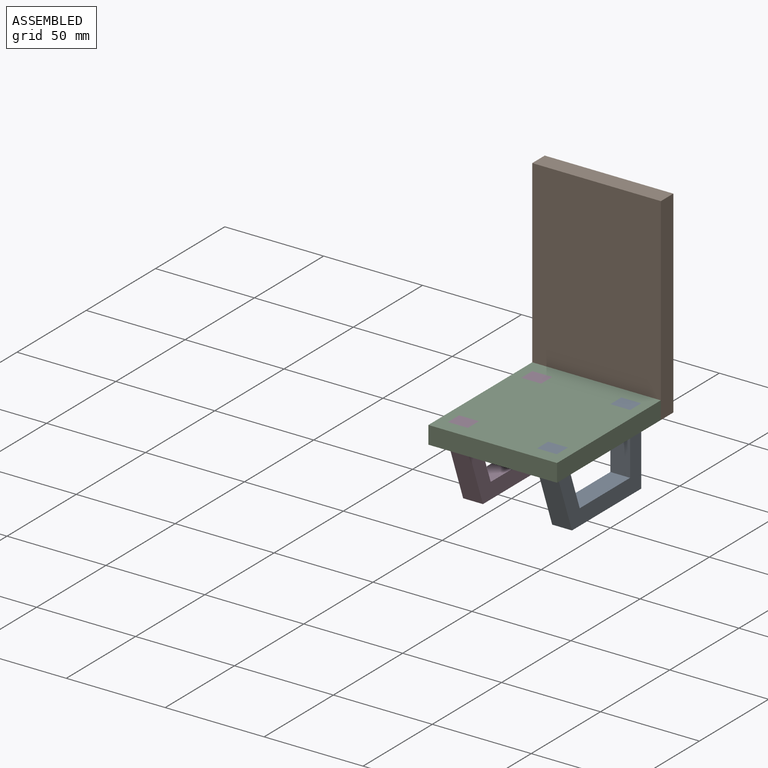
[diagram: assembled view]
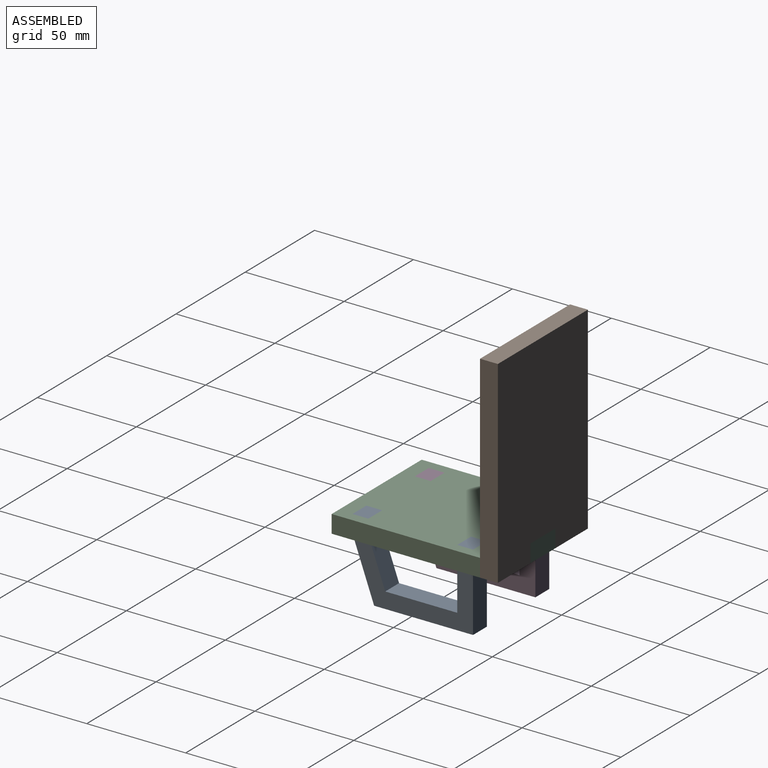
[diagram: assembled view, second angle]
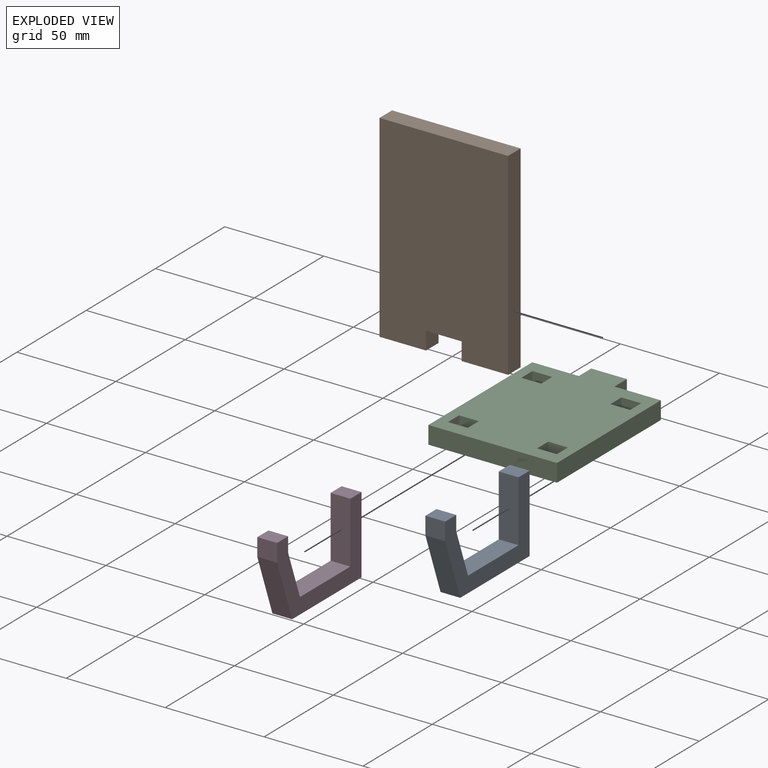
[diagram: exploded view]
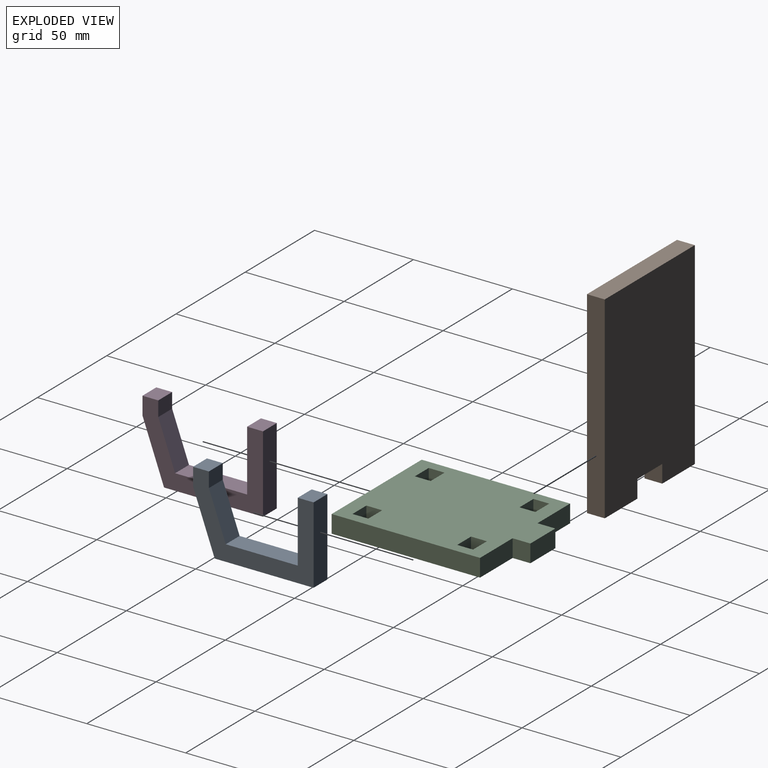
[diagram: exploded view, second angle]
ASSEMBLY  parts=4 mates=3
PART A: 12 faces, bbox 10x60.9x39 mm
  f0: plane 23.41x10mm, normal (0,-0.94,0.34), area 249.1mm2, adj f1,f9,f10,f11
  f1: plane 36.4x10mm, normal (0,0,1), area 364mm2, adj f0,f2,f10,f11
  f2: plane 31x10mm, normal (0,1,0), area 310mm2, adj f1,f3,f10,f11
  f3: plane 10x8mm, normal (0,0,1), area 80mm2, adj f2,f4,f10,f11
  f4: plane 39x10mm, normal (0,-1,0), area 390mm2, adj f3,f5,f10,f11
  f5: plane 50x10mm, normal (0,0,-1), area 500mm2, adj f4,f6,f10,f11
  f6: plane 30x10.92mm, normal (0,0.94,-0.34), area 319.3mm2, adj f5,f7,f10,f11
  f7: plane 10x9mm, normal (0,1,0), area 90mm2, adj f6,f8,f10,f11
  f8: plane 10x8mm, normal (0,0,1), area 80mm2, adj f7,f9,f10,f11
  f9: plane 10x7.59mm, normal (0,-1,0), area 75.9mm2, adj f0,f8,f10,f11
  f10: plane 60.92x39mm, normal (1,0,0), area 919.3mm2, adj f0,f1,f2,f3,f4,f5,f6,f7
  f11: plane 60.92x39mm, normal (-1,0,0), area 919.3mm2, adj f0,f1,f2,f3,f4,f5,f6,f7
PART B: 10 faces, bbox 65x9x100 mm
  f0: plane 23.5x9mm, normal (0,0,-1), area 211.5mm2, adj f3,f5,f6,f9
  f1: plane 100x9mm, normal (-1,0,0), area 900mm2, adj f2,f4,f5,f6
  f2: plane 23.5x9mm, normal (0,0,-1), area 211.5mm2, adj f1,f5,f6,f8
  f3: plane 100x9mm, normal (1,0,0), area 900mm2, adj f0,f4,f5,f6
  f4: plane 65x9mm, normal (0,0,1), area 585mm2, adj f1,f3,f5,f6
  f5: plane 100x65mm, normal (0,-1,0), area 6338mm2, adj f0,f1,f2,f3,f4,f7,f8,f9
  f6: plane 100x65mm, normal (0,1,0), area 6338mm2, adj f0,f1,f2,f3,f4,f7,f8,f9
  f7: plane 18x9mm, normal (0,0,-1), area 162mm2, adj f5,f6,f8,f9
  f8: plane 9x9mm, normal (1,0,0), area 81mm2, adj f2,f5,f6,f7
  f9: plane 9x9mm, normal (-1,0,0), area 81mm2, adj f0,f5,f6,f7
PART C: 26 faces, bbox 65x84x9 mm
  f0: plane 84x65mm, normal (0,0,1), area 4717mm2, adj f2,f3,f4,f5,f6,f7,f8,f9
  f1: plane 84x65mm, normal (0,0,-1), area 4717mm2, adj f2,f3,f4,f5,f6,f7,f8,f9
  f2: plane 23.5x9mm, normal (0,1,0), area 211.5mm2, adj f0,f1,f5,f9
  f3: plane 75x9mm, normal (-1,0,0), area 675mm2, adj f0,f1,f4,f6
  f4: plane 65x9mm, normal (0,-1,0), area 585mm2, adj f0,f1,f3,f5
  f5: plane 75x9mm, normal (1,0,0), area 675mm2, adj f0,f1,f2,f4
  f6: plane 23.5x9mm, normal (0,1,0), area 211.5mm2, adj f0,f1,f3,f7
  f7: plane 9x9mm, normal (-1,0,0), area 81mm2, adj f0,f1,f6,f8
  f8: plane 18x9mm, normal (0,1,0), area 162mm2, adj f0,f1,f7,f9
  f9: plane 9x9mm, normal (1,0,0), area 81mm2, adj f0,f1,f2,f8
  f10: plane 9x8mm, normal (1,0,0), area 72mm2, adj f0,f1,f11,f13
  f11: plane 10x9mm, normal (0,1,0), area 90mm2, adj f0,f1,f10,f12
  f12: plane 9x8mm, normal (-1,0,0), area 72mm2, adj f0,f1,f11,f13
  f13: plane 10x9mm, normal (0,-1,0), area 90mm2, adj f0,f1,f10,f12
  f14: plane 9x8mm, normal (-1,0,0), area 72mm2, adj f0,f1,f15,f17
  f15: plane 10x9mm, normal (0,-1,0), area 90mm2, adj f0,f1,f14,f16
  f16: plane 9x8mm, normal (1,0,0), area 72mm2, adj f0,f1,f15,f17
  f17: plane 10x9mm, normal (0,1,0), area 90mm2, adj f0,f1,f14,f16
  f18: plane 9x8mm, normal (-1,0,0), area 72mm2, adj f0,f1,f19,f21
  f19: plane 10x9mm, normal (0,-1,0), area 90mm2, adj f0,f1,f18,f20
  f20: plane 9x8mm, normal (1,0,0), area 72mm2, adj f0,f1,f19,f21
  f21: plane 10x9mm, normal (0,1,0), area 90mm2, adj f0,f1,f18,f20
  f22: plane 10x9mm, normal (0,-1,0), area 90mm2, adj f0,f1,f23,f25
  f23: plane 9x8mm, normal (1,0,0), area 72mm2, adj f0,f1,f22,f24
  f24: plane 10x9mm, normal (0,1,0), area 90mm2, adj f0,f1,f23,f25
  f25: plane 9x8mm, normal (-1,0,0), area 72mm2, adj f0,f1,f22,f24
PART D: same geometry as A
PLACE A rot(axis=(0,0,-1),180deg) t=(91.55,34.31,-46.66)mm
PLACE B t=(64.05,50.35,3.34)mm
PLACE C rot(axis=(0,0,1),0deg) t=(64.05,3.85,-46.66)mm
PLACE D rot(axis=(0,0,-1),180deg) t=(46.55,34.31,-46.66)mm
MATE fastened D.f7 <-> C.f24  axis (0,-1,0) through (41.55,-26.61,-37.66)mm
MATE fastened C.f9 <-> B.f9  axis (1,0,0) through (73.05,45.85,-42.16)mm
MATE fastened C.f21 <-> A.f7  axis (0,1,0) through (86.55,-26.61,-37.66)mm
